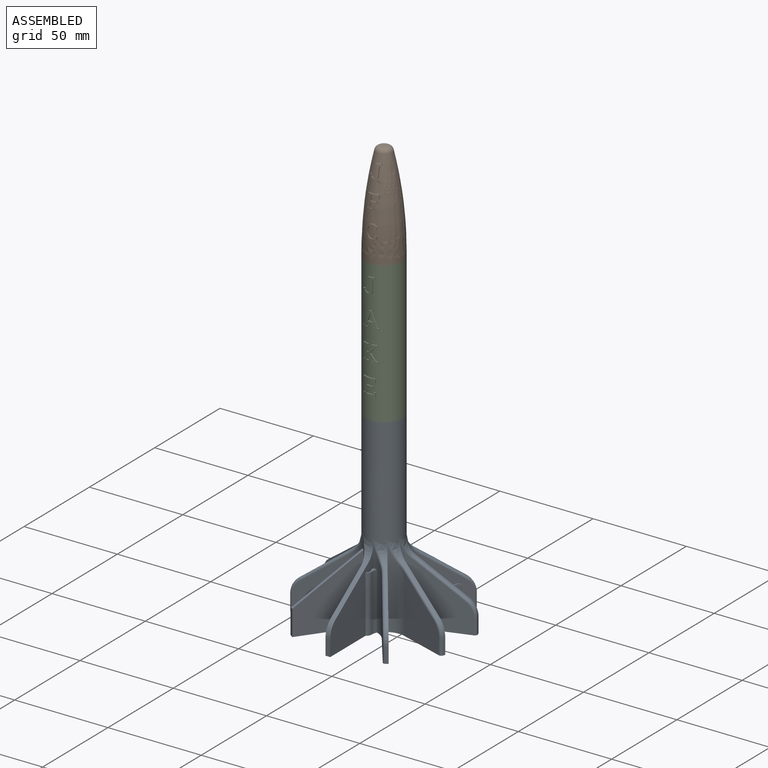
[diagram: assembled view]
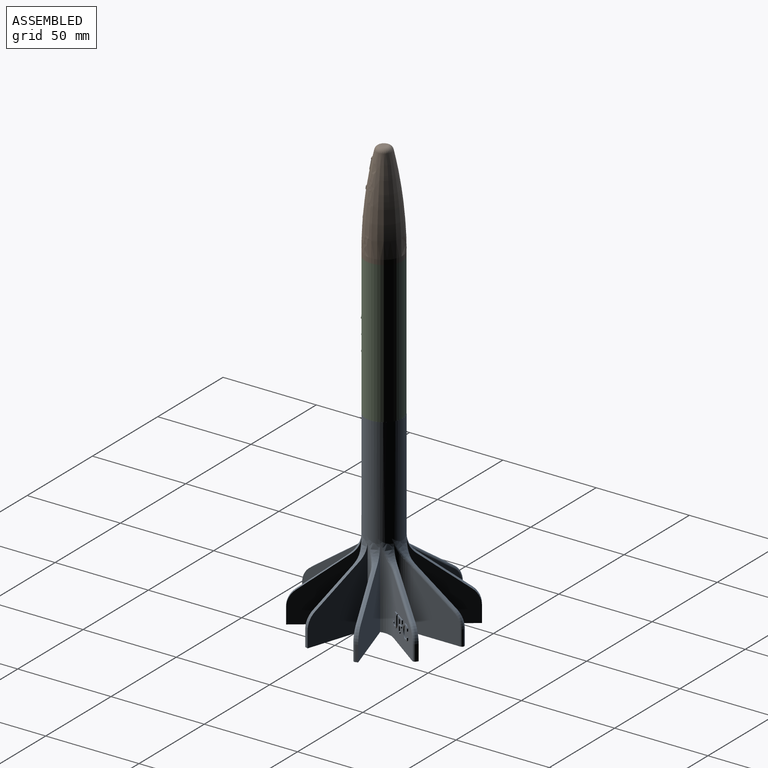
[diagram: assembled view, second angle]
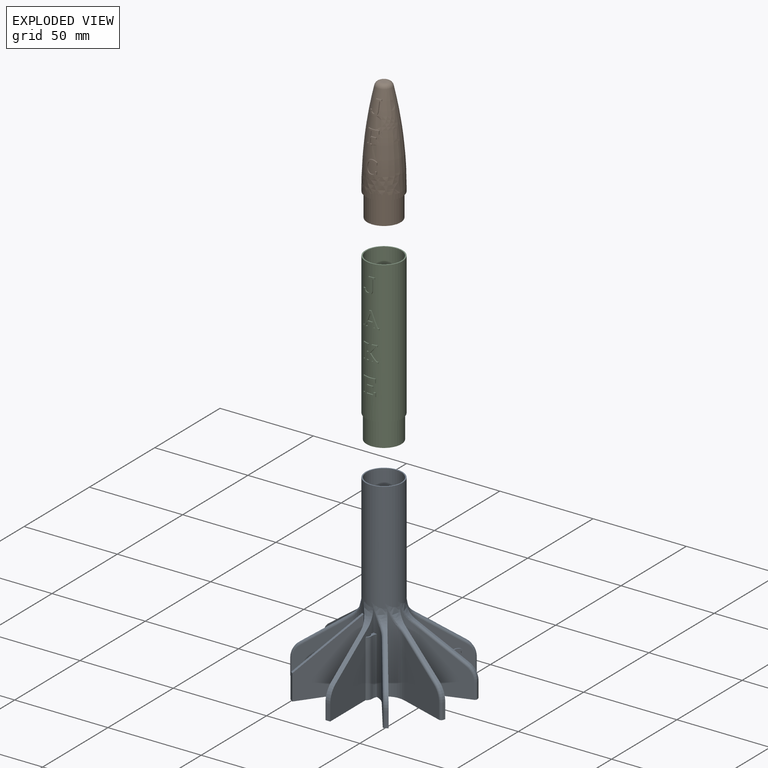
[diagram: exploded view]
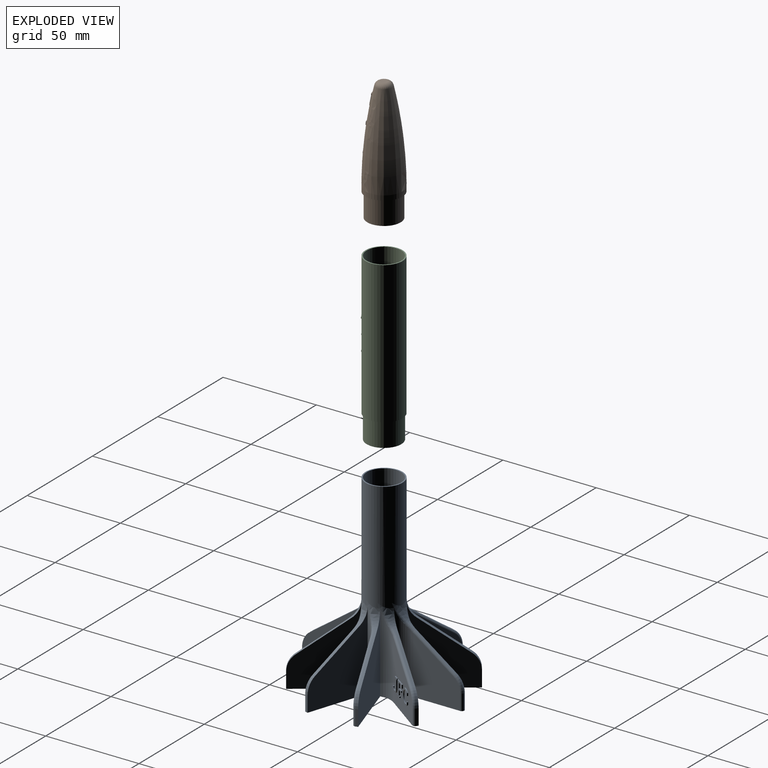
[diagram: exploded view, second angle]
ASSEMBLY  parts=3 mates=2
PART A: 208 faces, bbox 83.6x87x101.7 mm
  f0: cylinder r=9.28mm len=18.57mm, axis (0,0,-1), area 889mm2, adj f21,f142
  f1: cylinder r=10.16mm len=45.05mm, axis (0,0,-1), area 204.7mm2, adj f6,f22,f87,f88,f89,f94,f95,f137
  f2: cylinder r=10.16mm len=42.11mm, axis (0,0,-1), area 247.5mm2, adj f3,f22,f76,f81,f82,f133,f136
  f3: plane 42.43x33.21mm, normal (1,0,0), area 760.8mm2, adj f2,f22,f81,f86,f87,f91,f92,f133
  f4: cylinder r=10.16mm len=42.11mm, axis (0,0,-1), area 314.6mm2, adj f22,f24,f27,f29,f126
  f5: cylinder r=10.16mm len=2.54mm, axis (0,0,-1), area 1.1mm2, adj f6,f118,f130
  f6: cylinder r=9.92mm len=64.35mm, axis (0,0,-1), area 3633.5mm2, adj f1,f5,f7,f9,f11,f12,f14,f16
  f7: cylinder r=10.16mm len=2.54mm, axis (0,0,-1), area 1.1mm2, adj f6,f27,f128
  f8: cylinder r=10.16mm len=42.11mm, axis (0,0,-1), area 314.6mm2, adj f22,f113,f118,f119,f124
  f9: cylinder r=10.16mm len=2.54mm, axis (0,0,-1), area 1.1mm2, adj f6,f103,f115
  f10: cylinder r=10.16mm len=42.11mm, axis (0,0,-1), area 314.6mm2, adj f22,f98,f103,f104,f111
  f11: cylinder r=10.16mm len=2.54mm, axis (0,0,-1), area 1.1mm2, adj f6,f81,f90
  f12: cylinder r=10.16mm len=2.54mm, axis (0,0,-1), area 1.1mm2, adj f6,f68,f78
  f13: cylinder r=10.16mm len=42.11mm, axis (0,0,-1), area 314.6mm2, adj f22,f63,f68,f69,f74
  f14: cylinder r=10.16mm len=2.54mm, axis (0,0,-1), area 1.1mm2, adj f6,f55,f65
  f15: cylinder r=10.16mm len=42.11mm, axis (0,0,-1), area 314.6mm2, adj f22,f50,f55,f56,f61
  f16: cylinder r=10.16mm len=2.54mm, axis (0,0,-1), area 1.1mm2, adj f6,f42,f52
  f17: cylinder r=10.16mm len=42.11mm, axis (0,0,-1), area 314.6mm2, adj f22,f37,f42,f43,f48
  f18: cylinder r=10.16mm len=2.54mm, axis (0,0,-1), area 1.1mm2, adj f6,f28,f39
  f19: cylinder r=10.16mm len=42.11mm, axis (0,0,-1), area 314.6mm2, adj f22,f23,f28,f30,f35
  f20: cylinder r=9.28mm len=73.66mm, axis (0,0,-1), area 4288.1mm2, adj f22,f143,f144,f145
  f21: plane 19.84x19.84mm, normal (0,0,1), area 38.3mm2, adj f0,f6
  f22: plane 86.03x82.61mm, normal (0,0,-1), area 951.9mm2, adj f1,f2,f3,f4,f8,f10,f13,f15
  f23: plane 31.02x25.24mm, normal (1,0,0), area 553.2mm2, adj f19,f22,f31,f32,f33
  f24: plane 31.02x25.24mm, normal (-1,0,0), area 553.2mm2, adj f4,f22,f31,f32,f33
  f25: plane 3.06x2.18mm, normal (0,0.58,0.81), area 1mm2, adj f26,f29,f30
  f26: bspline ~22.86x10.82mm, area 52.8mm2, adj f6,f25,f27,f28
  f27: bspline ~12.86x7.65mm, area 13.2mm2, adj f4,f7,f26,f29,f126,f127
  f28: bspline ~12.86x7.65mm, area 13.2mm2, adj f18,f19,f26,f30,f35,f40
  f29: bspline ~3.46x3.21mm, area 6.8mm2, adj f4,f25,f27,f31
  f30: bspline ~3.46x3.21mm, area 6.8mm2, adj f19,f25,f28,f31
  f31: cylinder r=1.27mm len=22.24mm, axis (0,-0.81,0.58), area 105.3mm2, adj f23,f24,f29,f30,f32
  f32: torus R=8.89mm, axis (1,0,0), area 36.9mm2, adj f23,f24,f31,f33
  f33: cylinder r=1.27mm len=8.48mm, axis (0,0,1), area 33.8mm2, adj f22,f23,f24,f32
  f34: plane 8.48x1.03mm, normal (0.59,0.81,0), area 10.8mm2, adj f22,f35,f41,f46
  f35: plane 42.43x26.9mm, normal (-0.81,0.59,0), area 842.8mm2, adj f19,f22,f28,f34,f36,f40,f41
  f36: plane 20.86x17.48mm, normal (0.34,0.47,0.81), area 38.8mm2, adj f35,f38,f40,f41,f43,f44
  f37: plane 31.02x20.42mm, normal (0.81,-0.59,0), area 506.9mm2, adj f17,f22,f44,f45,f46,f146,f147,f148
  f38: bspline ~10.82x10.02mm, area 29.6mm2, adj f6,f36,f39,f42
  f39: sphere r=10.16mm, area 6.3mm2, adj f18,f38,f40
  f40: bspline ~8.95x4.66mm, area 4.2mm2, adj f28,f35,f36,f39
  f41: cylinder r=10.16mm len=8.28mm, axis (-0.81,0.59,0), area 12.3mm2, adj f34,f35,f36,f45
  f42: bspline ~12.86x9.37mm, area 13.2mm2, adj f16,f17,f38,f43,f48,f53
  f43: bspline ~3.76x3.21mm, area 6.8mm2, adj f17,f36,f42,f44
  f44: cylinder r=1.27mm len=18.74mm, axis (0.48,0.66,-0.58), area 52.6mm2, adj f36,f37,f43,f45
  f45: torus R=8.89mm, axis (0.81,-0.59,0), area 18.4mm2, adj f37,f41,f44,f46
  f46: cylinder r=1.27mm len=8.48mm, axis (0,0,-1), area 16.9mm2, adj f22,f34,f37,f45
  f47: plane 8.48x1.21mm, normal (0.95,0.31,0), area 10.8mm2, adj f22,f48,f54,f59
  f48: plane 42.43x31.6mm, normal (-0.31,0.95,0), area 842.8mm2, adj f17,f22,f42,f47,f49,f53,f54
  f49: plane 23.73x17.48mm, normal (0.55,0.18,0.81), area 38.8mm2, adj f48,f51,f53,f54,f56,f57
  f50: plane 31.02x24mm, normal (0.31,-0.95,0), area 553.2mm2, adj f15,f22,f57,f58,f59
  f51: bspline ~12.41x10.82mm, area 29.6mm2, adj f6,f49,f52,f55
  f52: sphere r=10.16mm, area 4.7mm2, adj f16,f51,f53
  f53: bspline ~8.95x4.63mm, area 4.2mm2, adj f42,f48,f49,f52
  f54: cylinder r=10.16mm len=8.28mm, axis (-0.31,0.95,0), area 12.3mm2, adj f47,f48,f49,f58
  f55: bspline ~12.85x7.62mm, area 13.2mm2, adj f14,f15,f51,f56,f61,f66
  f56: bspline ~3.21x2.88mm, area 6.8mm2, adj f15,f49,f55,f57
  f57: cylinder r=1.27mm len=20.86mm, axis (0.77,0.25,-0.58), area 52.6mm2, adj f49,f50,f56,f58
  f58: torus R=8.89mm, axis (0.31,-0.95,0), area 18.4mm2, adj f50,f54,f57,f59
  f59: cylinder r=1.27mm len=8.48mm, axis (0,0,-1), area 16.9mm2, adj f22,f47,f50,f58
  f60: plane 8.48x1.21mm, normal (0.95,-0.31,0), area 10.8mm2, adj f22,f61,f67,f72
  f61: plane 42.43x31.6mm, normal (0.31,0.95,0), area 842.8mm2, adj f15,f22,f55,f60,f62,f66,f67
  f62: plane 23.88x17.48mm, normal (0.55,-0.18,0.81), area 38.8mm2, adj f61,f64,f66,f67,f69,f70
  f63: plane 31.02x24mm, normal (-0.31,-0.95,0), area 553.2mm2, adj f13,f22,f70,f71,f72
  f64: bspline ~11.3x10.82mm, area 29.6mm2, adj f6,f62,f65,f68
  f65: sphere r=10.16mm, area 4.6mm2, adj f14,f64,f66
  f66: bspline ~8.46x4.51mm, area 4.2mm2, adj f55,f61,f62,f65
  f67: cylinder r=10.16mm len=8.28mm, axis (0.31,0.95,0), area 12.3mm2, adj f60,f61,f62,f71
  f68: bspline ~12.85x8.88mm, area 13.2mm2, adj f12,f13,f64,f69,f74,f79
  f69: bspline ~3.79x3.21mm, area 6.8mm2, adj f13,f62,f68,f70
  f70: cylinder r=1.27mm len=21.54mm, axis (0.77,-0.25,-0.58), area 52.6mm2, adj f62,f63,f69,f71
  f71: torus R=8.89mm, axis (-0.31,-0.95,0), area 18.4mm2, adj f63,f67,f70,f72
  f72: cylinder r=1.27mm len=8.48mm, axis (0,0,-1), area 16.9mm2, adj f22,f60,f63,f71
  f73: plane 8.48x1.03mm, normal (0.59,-0.81,0), area 10.8mm2, adj f22,f74,f80,f85
  f74: plane 42.43x26.9mm, normal (0.81,0.59,0), area 842.8mm2, adj f13,f22,f68,f73,f75,f79,f80
  f75: plane 20.6x17.48mm, normal (0.34,-0.47,0.81), area 38.8mm2, adj f74,f77,f79,f80,f82,f83
  f76: plane 31.02x20.42mm, normal (-0.81,-0.59,0), area 553.2mm2, adj f2,f22,f83,f84,f85
  f77: bspline ~11.71x10.82mm, area 29.6mm2, adj f6,f75,f78,f81
  f78: sphere r=10.16mm, area 4.1mm2, adj f12,f77,f79
  f79: bspline ~8.95x4.75mm, area 4.2mm2, adj f68,f74,f75,f78
  f80: cylinder r=10.16mm len=8.28mm, axis (0.81,0.59,0), area 12.3mm2, adj f73,f74,f75,f84
  f81: bspline ~12.13x8.07mm, area 13.2mm2, adj f2,f3,f11,f77,f82,f91
  f82: bspline ~3.36x3.21mm, area 6.8mm2, adj f2,f75,f81,f83
  f83: cylinder r=1.27mm len=17.76mm, axis (0.48,-0.66,-0.58), area 52.6mm2, adj f75,f76,f82,f84
  f84: torus R=8.89mm, axis (-0.81,-0.59,0), area 18.4mm2, adj f76,f80,f83,f85
  f85: cylinder r=1.27mm len=8.48mm, axis (0,0,-1), area 16.9mm2, adj f22,f73,f76,f84
  f86: plane 8.48x2.54mm, normal (0,-1,0), area 21.5mm2, adj f3,f22,f88,f92
  f87: plane 24.63x17.53mm, normal (0,-0.58,0.81), area 76.8mm2, adj f1,f3,f88,f89,f91,f92
  f88: plane 32.58x26.51mm, normal (-1,0,0), area 609.6mm2, adj f1,f22,f86,f87,f92
  f89: bspline ~11.89x10.82mm, area 36.8mm2, adj f1,f6,f87,f90
  f90: sphere r=10.16mm, area 4.7mm2, adj f11,f89,f91
  f91: bspline ~8.95x4.7mm, area 4.2mm2, adj f3,f81,f87,f90
  f92: cylinder r=10.16mm len=8.28mm, axis (1,0,0), area 24.6mm2, adj f3,f86,f87,f88
  f93: plane 13.72x2.06mm, normal (-0.59,-0.81,0), area 34.4mm2, adj f22,f94,f95,f96,f97
  f94: plane 37.25x26.75mm, normal (0.81,-0.59,0), area 842.8mm2, adj f1,f22,f93,f95
  f95: plane 27.54x23.57mm, normal (-0.34,-0.47,0.81), area 51.6mm2, adj f1,f6,f93,f94,f97
  f96: plane 35.69x26.75mm, normal (-0.81,0.59,0), area 791.2mm2, adj f22,f93,f97,f101
  f97: cylinder r=1.27mm len=28.71mm, axis (-0.48,-0.66,-0.58), area 81mm2, adj f6,f93,f95,f96,f101
  f98: plane 31.02x24mm, normal (-0.31,0.95,0), area 553.2mm2, adj f10,f22,f106,f108,f109
  f99: plane 3.04x2.18mm, normal (-0.55,-0.18,0.81), area 1mm2, adj f102,f104,f107
  f100: plane 31.02x24mm, normal (0.31,-0.95,0), area 553.2mm2, adj f22,f101,f106,f108,f109
  f101: cylinder r=10.16mm len=45.05mm, axis (0,0,-1), area 316.8mm2, adj f6,f22,f96,f97,f100,f105,f107
  f102: bspline ~21.74x10.82mm, area 52.8mm2, adj f6,f99,f103,f105
  f103: bspline ~12.85x7.62mm, area 13.2mm2, adj f9,f10,f102,f104,f111,f116
  f104: bspline ~3.21x2.88mm, area 6.8mm2, adj f10,f99,f103,f106
  f105: bspline ~12.86x8.89mm, area 8.7mm2, adj f101,f102,f107
  f106: cylinder r=1.27mm len=21.65mm, axis (-0.77,-0.25,-0.58), area 105.3mm2, adj f98,f100,f104,f107,f108
  f107: bspline ~3.79x3.21mm, area 6.8mm2, adj f99,f101,f105,f106
  f108: torus R=8.89mm, axis (-0.31,0.95,0), area 36.9mm2, adj f98,f100,f106,f109
  f109: cylinder r=1.27mm len=8.48mm, axis (0,0,-1), area 33.8mm2, adj f22,f98,f100,f108
  f110: plane 8.48x1.21mm, normal (-0.95,0.31,0), area 10.8mm2, adj f22,f111,f117,f122
  f111: plane 42.43x31.6mm, normal (-0.31,-0.95,0), area 842.8mm2, adj f10,f22,f103,f110,f112,f116,f117
  f112: plane 23.88x17.48mm, normal (-0.55,0.18,0.81), area 38.8mm2, adj f111,f114,f116,f117,f119,f120
  f113: plane 31.02x24mm, normal (0.31,0.95,0), area 553.2mm2, adj f8,f22,f120,f121,f122
  f114: bspline ~11.3x10.82mm, area 29.6mm2, adj f6,f112,f115,f118
  f115: sphere r=10.16mm, area 4.6mm2, adj f9,f114,f116
  f116: bspline ~8.95x4.92mm, area 4.2mm2, adj f103,f111,f112,f115
  f117: cylinder r=10.16mm len=8.28mm, axis (-0.31,-0.95,0), area 12.3mm2, adj f110,f111,f112,f121
  f118: bspline ~12.85x8.88mm, area 13.2mm2, adj f5,f8,f114,f119,f124,f131
  f119: bspline ~3.79x3.21mm, area 6.8mm2, adj f8,f112,f118,f120
  f120: cylinder r=1.27mm len=21.54mm, axis (-0.77,0.25,-0.58), area 52.6mm2, adj f112,f113,f119,f121
  f121: torus R=8.89mm, axis (0.31,0.95,0), area 18.4mm2, adj f113,f117,f120,f122
  f122: cylinder r=1.27mm len=8.48mm, axis (0,0,-1), area 16.9mm2, adj f22,f110,f113,f121
  f123: plane 8.48x2.06mm, normal (-0.59,0.81,0), area 21.5mm2, adj f22,f124,f126,f132
  f124: plane 42.43x26.9mm, normal (-0.81,-0.59,0), area 842.8mm2, adj f8,f22,f118,f123,f125,f131,f132
  f125: plane 21.34x17.48mm, normal (-0.34,0.47,0.81), area 76.5mm2, adj f124,f126,f127,f129,f131,f132
  f126: plane 42.4x26.87mm, normal (0.81,0.59,0), area 842.8mm2, adj f4,f22,f27,f123,f125,f127,f132
  f127: bspline ~9.15x4.96mm, area 4.2mm2, adj f27,f125,f126,f128
  f128: sphere r=10.16mm, area 6.3mm2, adj f7,f127,f129
  f129: bspline ~8.28x3.85mm, area 6.4mm2, adj f6,f125,f128,f130
  f130: sphere r=10.16mm, area 4.1mm2, adj f5,f129,f131
  f131: bspline ~8.95x4.73mm, area 4.2mm2, adj f118,f124,f125,f130
  f132: cylinder r=10.16mm len=8.28mm, axis (-0.81,-0.59,0), area 24.6mm2, adj f123,f124,f125,f126
  f133: plane 6.02x2.16mm, normal (0,0,1), area 6.6mm2, adj f2,f3,f134,f135,f136
  f134: cylinder r=2.1mm len=30.48mm, axis (0,0,-1), area 117.5mm2, adj f3,f22,f133
  f135: cylinder r=2.74mm len=30.48mm, axis (0,0,-1), area 91.1mm2, adj f3,f22,f133,f136
  f136: cylinder r=7.73mm len=30.48mm, axis (0,0,-1), area 99.9mm2, adj f2,f22,f133,f135
  f137: cylinder r=7.73mm len=30.48mm, axis (0,0,-1), area 109mm2, adj f1,f22,f138,f140
  f138: cylinder r=2.74mm len=30.48mm, axis (0,0,-1), area 90.6mm2, adj f1,f22,f137,f140
  f139: cylinder r=2.1mm len=30.48mm, axis (0,0,-1), area 77.6mm2, adj f1,f22,f140
  f140: plane 5.88x2.27mm, normal (0,0,1), area 3.2mm2, adj f1,f137,f138,f139
  f141: cylinder r=7.62mm len=15.24mm, axis (0,0,-1), area 608mm2, adj f142,f143
  f142: plane 18.57x18.57mm, normal (0,0,1), area 88.4mm2, adj f0,f141
  f143: plane 18.57x18.57mm, normal (0,0,-1), area 88.4mm2, adj f20,f141
  f144: cylinder r=2.54mm len=3.75mm, axis (0,0,-1), area 9.6mm2, adj f20,f22,f145
  f145: plane 3.75x1.02mm, normal (0,0,1), area 2.6mm2, adj f20,f144
  f146: plane 0.68x0.41mm, normal (0.59,0.81,0), area 0.3mm2, adj f37,f147,f162,f163
  f147: plane 2.57x2.06mm, normal (0,0,1), area 1.4mm2, adj f37,f146,f148,f163
  f148: plane 0.68x0.41mm, normal (-0.59,-0.81,0), area 0.3mm2, adj f37,f147,f149,f163
  f149: plane 1.01x0.93mm, normal (-0.1,-0.14,-0.99), area 0.5mm2, adj f37,f148,f150,f163
  f150: plane 4.82x0.41mm, normal (-0.59,-0.81,0), area 2.5mm2, adj f37,f149,f151,f163
  f151: extruded ~1.05x0.63mm, area 0.6mm2, adj f37,f150,f152,f163
  f152: extruded ~1.07x0.97mm, area 0.5mm2, adj f37,f151,f153,f163
  f153: extruded ~1.14x1.02mm, area 0.6mm2, adj f37,f152,f154,f163
  f154: extruded ~1.08x0.63mm, area 0.6mm2, adj f37,f153,f155,f163
  f155: plane 1.12x1.01mm, normal (0,0,1), area 0.5mm2, adj f37,f154,f156,f163
  f156: plane 0.42x0.31mm, normal (-0.56,-0.77,0.3), area 0mm2, adj f37,f155,f157,f163
  f157: extruded ~1.66x0.82mm, area 0.9mm2, adj f37,f156,f158,f163
  f158: extruded ~1.75x1.47mm, area 1mm2, adj f37,f157,f159,f163
  f159: extruded ~1.69x1.42mm, area 1mm2, adj f37,f158,f160,f163
  f160: extruded ~1.66x0.84mm, area 0.9mm2, adj f37,f159,f161,f163
  f161: plane 4.82x0.41mm, normal (0.59,0.81,0), area 2.5mm2, adj f37,f160,f162,f163
  f162: plane 1.01x0.93mm, normal (0.1,0.14,-0.99), area 0.5mm2, adj f37,f146,f161,f163
  f163: plane 7.93x4.63mm, normal (0.81,-0.59,0), area 13mm2, adj f146,f147,f148,f149,f150,f151,f152,f153
  f164: plane 1.01x0.93mm, normal (-0.1,-0.14,0.99), area 0.5mm2, adj f37,f165,f181,f182
  f165: plane 0.68x0.41mm, normal (-0.59,-0.81,0), area 0.3mm2, adj f37,f164,f166,f182
  f166: plane 2.57x2.06mm, normal (0,0,-1), area 1.4mm2, adj f37,f165,f167,f182
  f167: plane 0.68x0.41mm, normal (0.59,0.81,0), area 0.3mm2, adj f37,f166,f168,f182
  f168: plane 1.01x0.93mm, normal (0.1,0.14,0.99), area 0.5mm2, adj f37,f167,f169,f182
  f169: plane 2.63x0.41mm, normal (0.59,0.81,0), area 1.3mm2, adj f37,f168,f170,f182
  f170: plane 2.74x2.19mm, normal (0,0,-1), area 1.5mm2, adj f37,f169,f171,f182
  f171: plane 0.83x0.41mm, normal (0.59,0.81,0), area 0.4mm2, adj f37,f170,f172,f182
  f172: plane 2.74x2.19mm, normal (0,0,1), area 1.5mm2, adj f37,f171,f173,f182
  f173: plane 2.7x0.41mm, normal (0.59,0.81,0), area 1.4mm2, adj f37,f172,f174,f182
  f174: plane 2.82x2.25mm, normal (0,0,-1), area 1.6mm2, adj f37,f173,f175,f182
  f175: plane 1.05x0.46mm, normal (-0.59,-0.81,-0.08), area 0.5mm2, adj f37,f174,f176,f182
  f176: plane 1.03x0.94mm, normal (0,0,-1), area 0.5mm2, adj f37,f175,f177,f182
  f177: plane 1.88x0.41mm, normal (0.59,0.81,0), area 1mm2, adj f37,f176,f178,f182
  f178: plane 5.19x3.96mm, normal (0,0,1), area 3.1mm2, adj f37,f177,f179,f182
  f179: plane 0.68x0.41mm, normal (-0.59,-0.81,0), area 0.3mm2, adj f37,f178,f180,f182
  f180: plane 1.01x0.93mm, normal (-0.1,-0.14,-0.99), area 0.5mm2, adj f37,f179,f181,f182
  f181: plane 6.16x0.41mm, normal (-0.59,-0.81,0), area 3.1mm2, adj f37,f164,f180,f182
  f182: plane 7.82x4.89mm, normal (0.81,-0.59,0), area 17.2mm2, adj f164,f165,f166,f167,f168,f169,f170,f171
  f183: plane 0.9x0.85mm, normal (0,0,-1), area 0.4mm2, adj f37,f184,f206,f207
  f184: plane 1.39x0.41mm, normal (0.59,0.81,0), area 0.7mm2, adj f37,f183,f185,f207
  f185: extruded ~1.12x1.01mm, area 0.7mm2, adj f37,f184,f186,f207
  f186: extruded ~1.57x1.33mm, area 0.8mm2, adj f37,f185,f187,f207
  f187: extruded ~2.34x1.89mm, area 1.4mm2, adj f37,f186,f188,f207
  f188: extruded ~2.84x1.08mm, area 1.6mm2, adj f37,f187,f189,f207
  f189: plane 0.41x0.3mm, normal (-0.59,-0.81,0), area 0.1mm2, adj f37,f188,f190,f207
  f190: extruded ~2.84x1.09mm, area 1.6mm2, adj f37,f189,f191,f207
  f191: extruded ~2.32x1.88mm, area 1.4mm2, adj f37,f190,f192,f207
  f192: extruded ~1.57x1.33mm, area 0.8mm2, adj f37,f191,f193,f207
  f193: extruded ~1.12x1.01mm, area 0.7mm2, adj f37,f192,f194,f207
  f194: plane 1.39x0.41mm, normal (0.59,0.81,0), area 0.7mm2, adj f37,f193,f195,f207
  f195: plane 0.9x0.85mm, normal (0,0,1), area 0.4mm2, adj f37,f194,f196,f207
  f196: plane 1.11x0.53mm, normal (-0.58,-0.8,0.18), area 0.6mm2, adj f37,f195,f197,f207
  f197: extruded ~0.84x0.81mm, area 0.4mm2, adj f37,f196,f198,f207
  f198: extruded ~1.08x0.98mm, area 0.5mm2, adj f37,f197,f199,f207
  f199: extruded ~1.74x1.46mm, area 1.1mm2, adj f37,f198,f200,f207
  f200: extruded ~2.25x0.82mm, area 1.2mm2, adj f37,f199,f201,f207
  f201: plane 0.41x0.3mm, normal (0.59,0.81,0), area 0.1mm2, adj f37,f200,f202,f207
  f202: extruded ~2.24x0.83mm, area 1.2mm2, adj f37,f201,f203,f207
  f203: extruded ~1.81x1.51mm, area 1.1mm2, adj f37,f202,f204,f207
  f204: extruded ~1.03x0.94mm, area 0.5mm2, adj f37,f203,f205,f207
  f205: extruded ~0.81x0.78mm, area 0.4mm2, adj f37,f204,f206,f207
  f206: plane 1.11x0.53mm, normal (-0.58,-0.8,-0.18), area 0.6mm2, adj f37,f183,f205,f207
  f207: plane 8.05x4.91mm, normal (0.81,-0.59,0), area 16.1mm2, adj f183,f184,f185,f186,f187,f188,f189,f190
PART B: 80 faces, bbox 19.9x20.2x66.1 mm
  f0: plane 17.3x17.3mm, normal (0,0,1), area 16.3mm2, adj f2,f14
  f1: cylinder r=8.98mm len=17.96mm, axis (0,0,-1), area 716.5mm2, adj f3,f12
  f2: cylinder r=8.34mm len=16.69mm, axis (0,0,-1), area 721.1mm2, adj f0,f3,f6,f7,f8,f9,f10
  f3: plane 17.96x17.96mm, normal (0,0,-1), area 79.4mm2, adj f1,f2,f4,f5,f7,f8,f9,f10
  f4: plane 13.2x6.35mm, normal (-1,0,0), area 83.8mm2, adj f3,f6,f7,f10
  f5: plane 13.2x6.35mm, normal (1,0,0), area 83.8mm2, adj f3,f6,f8,f9
  f6: plane 16.69x5.99mm, normal (0,0,1), area 44.9mm2, adj f2,f4,f5,f7,f8,f9,f10
  f7: cylinder r=1.27mm len=6.35mm, axis (0,0,-1), area 15.6mm2, adj f2,f3,f4,f6
  f8: cylinder r=1.27mm len=6.35mm, axis (0,0,-1), area 15.6mm2, adj f2,f3,f5,f6
  f9: cylinder r=1.27mm len=6.35mm, axis (0,0,-1), area 15.6mm2, adj f2,f3,f5,f6
  f10: cylinder r=1.27mm len=6.35mm, axis (0,0,-1), area 15.6mm2, adj f2,f3,f4,f6
  f11: cylinder r=9.92mm len=19.84mm, axis (0,0,1), area 158.3mm2, adj f12,f15
  f12: plane 19.84x19.84mm, normal (0,0,-1), area 55.8mm2, adj f1,f11
  f13: plane 5.62x5.62mm, normal (0,0,-1), area 24.8mm2, adj f14
  f14: revolved ~49.53x17.3mm, area 2104mm2, adj f0,f13
  f15: revolved ~48.84x19.84mm, area 2443.4mm2, adj f11,f17,f19,f20,f21,f22,f23,f24
  f16: plane 3.61x3.61mm, normal (0,0,1), area 10.2mm2, adj f17
  f17: torus R=1.81mm, axis (0,0,-1), area 69.9mm2, adj f15,f16
  f18: revolved ~7.63x6.33mm, area 12.6mm2, adj f19,f20,f21,f22,f23,f24,f25,f26
  f19: extruded ~1.04x0.82mm, area 0.6mm2, adj f15,f18,f20,f34
  f20: extruded ~1x0.77mm, area 0.6mm2, adj f15,f18,f19,f21
  f21: extruded ~0.92x0.53mm, area 0.5mm2, adj f15,f18,f20,f22
  f22: extruded ~1.01x0.71mm, area 0.6mm2, adj f15,f18,f21,f23
  f23: plane 4.65x1.43mm, normal (-1,0,0), area 2.4mm2, adj f15,f18,f22,f24
  f24: plane 0.85x0.53mm, normal (-0.17,0,-0.99), area 0.4mm2, adj f15,f18,f23,f25
  f25: plane 0.66x0.65mm, normal (-1,0,0), area 0.3mm2, adj f15,f18,f24,f35
  f26: plane 0.87x0.85mm, normal (0.17,0,-0.99), area 0.4mm2, adj f15,f18,f27,f33
  f27: plane 4.67x1.48mm, normal (1,0,0), area 2.4mm2, adj f15,f18,f26,f28
  f28: extruded ~1.6x0.92mm, area 0.9mm2, adj f15,f18,f27,f29
  f29: extruded ~1.66x0.63mm, area 0.9mm2, adj f15,f18,f28,f30
  f30: extruded ~1.73x1.04mm, area 0.9mm2, adj f15,f18,f29,f31
  f31: extruded ~1.6x1.12mm, area 0.9mm2, adj f15,f18,f30,f32
  f32: plane 0.51x0.03mm, normal (-0.95,0,0.3), area 0mm2, adj f15,f18,f31,f34
  f33: plane 0.66x0.66mm, normal (1,0,0), area 0.3mm2, adj f15,f18,f26,f35
  f34: plane 0.98x0.95mm, normal (0,0,1), area 0.5mm2, adj f15,f18,f19,f32
  f35: plane 2.7x1.08mm, normal (0,0,1), area 1.4mm2, adj f15,f18,f25,f33
  f36: revolved ~7.52x6.52mm, area 16.4mm2, adj f37,f38,f39,f40,f41,f42,f43,f44
  f37: plane 2.54x0.81mm, normal (1,0,0), area 1.3mm2, adj f15,f36,f38,f53
  f38: plane 0.84x0.6mm, normal (0.17,0,0.99), area 0.4mm2, adj f15,f36,f37,f39
  f39: plane 0.65x0.58mm, normal (1,0,0), area 0.3mm2, adj f15,f36,f38,f54
  f40: plane 0.8x0.61mm, normal (1,0,0), area 0.4mm2, adj f15,f36,f52,f53
  f41: plane 2.6x0.86mm, normal (1,0,0), area 1.3mm2, adj f15,f36,f51,f52
  f42: plane 1.01x0.63mm, normal (-1,0,-0.08), area 0.5mm2, adj f15,f36,f50,f51
  f43: plane 1.81x0.78mm, normal (1,0,0), area 0.9mm2, adj f15,f36,f49,f50
  f44: plane 5.96x1.31mm, normal (-1,0,0), area 3mm2, adj f15,f36,f45,f48
  f45: plane 0.84x0.83mm, normal (-0.17,0,-0.99), area 0.4mm2, adj f15,f36,f44,f46
  f46: plane 0.66x0.61mm, normal (-1,0,0), area 0.3mm2, adj f15,f36,f45,f49
  f47: plane 0.65x0.58mm, normal (-1,0,0), area 0.3mm2, adj f15,f36,f48,f54
  f48: plane 0.84x0.76mm, normal (-0.17,0,0.99), area 0.4mm2, adj f15,f36,f44,f47
  f49: plane 5.81x1.14mm, normal (0,0,1), area 3mm2, adj f15,f36,f43,f46
  f50: plane 0.87x0.77mm, normal (0,0,-1), area 0.4mm2, adj f15,f36,f42,f43
  f51: plane 3x0.72mm, normal (0,0,-1), area 1.5mm2, adj f15,f36,f41,f42
  f52: plane 2.91x0.69mm, normal (0,0,1), area 1.5mm2, adj f15,f36,f40,f41
  f53: plane 2.91x0.69mm, normal (0,0,-1), area 1.5mm2, adj f15,f36,f37,f40
  f54: plane 2.7x1.06mm, normal (0,0,-1), area 1.4mm2, adj f15,f36,f39,f47
  f55: revolved ~7.74x6.01mm, area 15.3mm2, adj f56,f57,f58,f59,f60,f61,f62,f63
  f56: plane 1.34x0.58mm, normal (1,0,0), area 0.7mm2, adj f15,f55,f57,f78
  f57: extruded ~0.98x0.78mm, area 0.6mm2, adj f15,f55,f56,f58
  f58: extruded ~1.51x0.68mm, area 0.8mm2, adj f15,f55,f57,f59
  f59: extruded ~2.41x1.09mm, area 1.4mm2, adj f15,f55,f58,f60
  f60: extruded ~2.73x0.94mm, area 1.5mm2, adj f15,f55,f59,f61
  f61: plane 0.51x0.11mm, normal (-1,0,0), area 0.1mm2, adj f15,f55,f60,f62
  f62: extruded ~2.74x0.93mm, area 1.5mm2, adj f15,f55,f61,f63
  f63: extruded ~2.42x1.08mm, area 1.4mm2, adj f15,f55,f62,f64
  f64: extruded ~1.51x0.65mm, area 0.8mm2, adj f15,f55,f63,f65
  f65: extruded ~0.98x0.75mm, area 0.6mm2, adj f15,f55,f64,f66
  f66: plane 1.34x0.61mm, normal (1,0,0), area 0.7mm2, adj f15,f55,f65,f79
  f67: plane 1.07x0.54mm, normal (-0.98,0,-0.18), area 0.5mm2, adj f15,f55,f68,f79
  f68: extruded ~0.61x0.58mm, area 0.4mm2, adj f15,f55,f67,f69
  f69: extruded ~0.86x0.57mm, area 0.4mm2, adj f15,f55,f68,f70
  f70: extruded ~1.8x0.85mm, area 1.1mm2, adj f15,f55,f69,f71
  f71: extruded ~2.16x0.63mm, area 1.2mm2, adj f15,f55,f70,f72
  f72: plane 0.52x0.12mm, normal (1,0,0), area 0.1mm2, adj f15,f55,f71,f73
  f73: extruded ~2.16x0.74mm, area 1.2mm2, adj f15,f55,f72,f74
  f74: extruded ~1.71x0.86mm, area 1mm2, adj f15,f55,f73,f75
  f75: extruded ~0.93x0.59mm, area 0.5mm2, adj f15,f55,f74,f76
  f76: extruded ~0.65x0.63mm, area 0.4mm2, adj f15,f55,f75,f77
  f77: plane 1.07x0.6mm, normal (-0.98,0,0.18), area 0.5mm2, adj f15,f55,f76,f78
  f78: plane 0.72x0.69mm, normal (0,0,1), area 0.4mm2, adj f15,f55,f56,f77
  f79: plane 0.72x0.7mm, normal (0,0,-1), area 0.4mm2, adj f15,f55,f66,f67
PART C: 105 faces, bbox 20x20.4x88.9 mm
  f0: cylinder r=9.28mm len=67.09mm, axis (0,0,-1), area 3688.2mm2, adj f2,f7,f8,f12,f13
  f1: cylinder r=9.92mm len=76.2mm, axis (0,0,-1), area 4645mm2, adj f2,f3,f15,f16,f17,f18,f19,f20
  f2: plane 19.84x19.84mm, normal (0,0,1), area 38.3mm2, adj f0,f1
  f3: plane 19.84x19.84mm, normal (0,0,-1), area 38.3mm2, adj f1,f4
  f4: cylinder r=9.28mm len=18.57mm, axis (0,0,1), area 740.8mm2, adj f3,f6
  f5: cylinder r=8.47mm len=19.05mm, axis (0,0,1), area 1013.9mm2, adj f6,f7
  f6: plane 18.57x18.57mm, normal (0,0,-1), area 45.3mm2, adj f4,f5
  f7: torus R=4.2mm, axis (0,0,-1), area 164.9mm2, adj f0,f5
  f8: cylinder r=4.19mm len=26.67mm, axis (0,0,1), area 227.1mm2, adj f0,f10,f11,f12,f13
  f9: cylinder r=1.65mm len=23.94mm, axis (0,0,1), area 216.3mm2, adj f12,f13
  f10: plane 2.66x0.38mm, normal (0,0,-1), area 0.7mm2, adj f8,f13
  f11: plane 2.66x0.38mm, normal (0,0,1), area 0.7mm2, adj f8,f12
  f12: torus R=5.47mm, axis (0,0,1), area 31mm2, adj f0,f8,f9,f11
  f13: torus R=5.47mm, axis (0,0,1), area 31mm2, adj f0,f8,f9,f10
  f14: cylinder r=9.92mm len=8.91mm, axis (0,0,-1), area 16.7mm2, adj f15,f16,f17,f18,f19,f20,f21,f22
  f15: plane 0.77x0.51mm, normal (-1,0,0), area 0.4mm2, adj f1,f14,f30,f31
  f16: extruded ~1.21x0.64mm, area 0.7mm2, adj f1,f14,f17,f29
  f17: extruded ~1.17x0.78mm, area 0.6mm2, adj f1,f14,f16,f18
  f18: extruded ~1.07x0.63mm, area 0.6mm2, adj f1,f14,f17,f19
  f19: extruded ~1.18x0.52mm, area 0.7mm2, adj f1,f14,f18,f20
  f20: plane 5.42x0.51mm, normal (-1,0,0), area 2.8mm2, adj f1,f14,f19,f30
  f21: plane 5.42x0.51mm, normal (1,0,0), area 2.8mm2, adj f1,f14,f22,f27
  f22: extruded ~1.87x0.74mm, area 1.1mm2, adj f1,f14,f21,f23
  f23: extruded ~1.93x0.69mm, area 1.1mm2, adj f1,f14,f22,f24
  f24: extruded ~2.02x1.07mm, area 1.1mm2, adj f1,f14,f23,f25
  f25: extruded ~1.87x0.83mm, area 1.1mm2, adj f1,f14,f24,f28
  f26: plane 0.77x0.51mm, normal (1,0,0), area 0.4mm2, adj f1,f14,f27,f31
  f27: plane 0.98x0.66mm, normal (0.17,0,-0.99), area 0.5mm2, adj f1,f14,f21,f26
  f28: plane 0.51x0.04mm, normal (-0.95,0,0.3), area 0mm2, adj f1,f14,f25,f29
  f29: plane 1.14x0.98mm, normal (0,0,1), area 0.6mm2, adj f1,f14,f16,f28
  f30: plane 0.98x0.57mm, normal (-0.17,0,-0.99), area 0.5mm2, adj f1,f14,f15,f20
  f31: plane 3.15x0.72mm, normal (0,0,1), area 1.6mm2, adj f1,f14,f15,f26
  f32: plane 3.77x1.37mm, normal (-0.94,0,-0.34), area 2mm2, adj f33,f35,f36,f53
  f33: plane 0.51x0.04mm, normal (0,0,-1), area 0mm2, adj f32,f34,f36,f53
  f34: plane 3.78x1.4mm, normal (0.94,0,-0.35), area 2mm2, adj f33,f35,f36,f53
  f35: plane 2.79x0.64mm, normal (0,0,1), area 1.4mm2, adj f32,f34,f36,f53
  f36: cylinder r=9.92mm len=8.78mm, axis (0,0,-1), area 24.8mm2, adj f32,f33,f34,f35,f37,f38,f39,f40
  f37: plane 0.76x0.51mm, normal (-1,0,0), area 0.4mm2, adj f1,f36,f51,f52
  f38: plane 0.76x0.51mm, normal (1,0,0), area 0.4mm2, adj f1,f36,f50,f51
  f39: plane 0.76x0.51mm, normal (-1,0,0), area 0.4mm2, adj f1,f36,f45,f46
  f40: plane 0.76x0.51mm, normal (1,0,0), area 0.4mm2, adj f1,f36,f44,f45
  f41: plane 7.93x3.07mm, normal (-0.93,0,0.36), area 4.3mm2, adj f1,f36,f42,f52
  f42: plane 1.02x0.53mm, normal (0,0,1), area 0.5mm2, adj f1,f36,f41,f43
  f43: plane 7.93x3.02mm, normal (0.93,0,0.36), area 4.3mm2, adj f1,f36,f42,f44
  f44: plane 0.76x0.64mm, normal (0.14,0,0.99), area 0.3mm2, adj f1,f36,f40,f43
  f45: plane 2.52x1.23mm, normal (0,0,-1), area 1.3mm2, adj f1,f36,f39,f40
  f46: plane 0.66x0.63mm, normal (-0.17,0,0.99), area 0.3mm2, adj f1,f36,f39,f47
  f47: plane 1.62x0.62mm, normal (-0.94,0,-0.34), area 0.9mm2, adj f1,f36,f46,f48
  f48: plane 3.52x0.71mm, normal (0,0,-1), area 1.8mm2, adj f1,f36,f47,f49
  f49: plane 1.62x0.65mm, normal (0.94,0,-0.35), area 0.9mm2, adj f1,f36,f48,f50
  f50: plane 0.66x0.66mm, normal (0.17,0,0.99), area 0.3mm2, adj f1,f36,f38,f49
  f51: plane 2.51x1.36mm, normal (0,0,-1), area 1.3mm2, adj f1,f36,f37,f38
  f52: plane 0.8x0.65mm, normal (-0.14,0,0.99), area 0.3mm2, adj f1,f36,f37,f41
  f53: cylinder r=9.92mm len=3.77mm, axis (0,0,-1), area 5.3mm2, adj f32,f33,f34,f35
  f54: cylinder r=9.92mm len=8.78mm, axis (0,0,-1), area 30mm2, adj f55,f56,f57,f58,f59,f60,f61,f62
  f55: plane 0.76x0.51mm, normal (-1,0,0), area 0.4mm2, adj f1,f54,f82,f83
  f56: plane 0.76x0.51mm, normal (1,0,0), area 0.4mm2, adj f1,f54,f81,f82
  f57: plane 3.03x0.51mm, normal (1,0,0), area 1.5mm2, adj f1,f54,f80,f81
  f58: plane 0.76x0.51mm, normal (-1,0,0), area 0.4mm2, adj f1,f54,f77,f78
  f59: plane 0.76x0.51mm, normal (1,0,0), area 0.4mm2, adj f1,f54,f76,f77
  f60: plane 0.77x0.51mm, normal (1,0,0), area 0.4mm2, adj f1,f54,f72,f73
  f61: plane 0.77x0.51mm, normal (-1,0,0), area 0.4mm2, adj f1,f54,f71,f72
  f62: plane 2.95x0.51mm, normal (1,0,0), area 1.5mm2, adj f1,f54,f68,f69
  f63: plane 0.77x0.51mm, normal (1,0,0), area 0.4mm2, adj f1,f54,f67,f68
  f64: plane 0.77x0.51mm, normal (-1,0,0), area 0.4mm2, adj f1,f54,f66,f67
  f65: plane 6.92x0.51mm, normal (-1,0,0), area 3.5mm2, adj f1,f54,f66,f83
  f66: plane 0.98x0.92mm, normal (-0.17,0,-0.99), area 0.5mm2, adj f1,f54,f64,f65
  f67: plane 3.15x1.43mm, normal (0,0,1), area 1.6mm2, adj f1,f54,f63,f64
  f68: plane 0.98x0.68mm, normal (0.17,0,-0.99), area 0.5mm2, adj f1,f54,f62,f63
  f69: plane 0.91x0.67mm, normal (0,0,1), area 0.5mm2, adj f1,f54,f62,f70
  f70: plane 3.03x2.46mm, normal (-0.78,0,0.63), area 2mm2, adj f1,f54,f69,f71
  f71: plane 0.66x0.57mm, normal (-0.13,0,-0.99), area 0.3mm2, adj f1,f54,f61,f70
  f72: plane 2.79x1.07mm, normal (0,0,1), area 1.4mm2, adj f1,f54,f60,f61
  f73: plane 0.83x0.76mm, normal (0.18,0,-0.98), area 0.4mm2, adj f1,f54,f60,f74
  f74: plane 3.36x2.71mm, normal (0.78,0,-0.63), area 2.2mm2, adj f1,f54,f73,f75
  f75: plane 3.66x2.97mm, normal (0.78,0,0.63), area 2.4mm2, adj f1,f54,f74,f76
  f76: plane 0.83x0.79mm, normal (0.18,0,0.98), area 0.4mm2, adj f1,f54,f59,f75
  f77: plane 2.88x1.16mm, normal (0,0,-1), area 1.5mm2, adj f1,f54,f58,f59
  f78: plane 0.67x0.58mm, normal (-0.13,0,0.99), area 0.3mm2, adj f1,f54,f58,f79
  f79: plane 3.12x2.51mm, normal (-0.78,0,-0.63), area 2mm2, adj f1,f54,f78,f80
  f80: plane 1.02x0.68mm, normal (0,0,-1), area 0.5mm2, adj f1,f54,f57,f79
  f81: plane 0.98x0.68mm, normal (0.17,0,0.99), area 0.5mm2, adj f1,f54,f56,f57
  f82: plane 3.15x1.43mm, normal (0,0,-1), area 1.6mm2, adj f1,f54,f55,f56
  f83: plane 0.98x0.92mm, normal (-0.17,0,0.99), area 0.5mm2, adj f1,f54,f55,f65
  f84: cylinder r=9.92mm len=8.78mm, axis (0,0,-1), area 27mm2, adj f85,f86,f87,f88,f89,f90,f91,f92
  f85: plane 2.11x0.51mm, normal (1,0,0), area 1.1mm2, adj f1,f84,f103,f104
  f86: plane 3.14x0.51mm, normal (1,0,0), area 1.6mm2, adj f1,f84,f100,f101
  f87: plane 0.94x0.51mm, normal (1,0,0), area 0.5mm2, adj f1,f84,f99,f100
  f88: plane 2.84x0.51mm, normal (1,0,0), area 1.4mm2, adj f1,f84,f98,f99
  f89: plane 2.11x0.51mm, normal (1,0,0), area 1.1mm2, adj f1,f84,f95,f96
  f90: plane 0.77x0.51mm, normal (-1,0,0), area 0.4mm2, adj f1,f84,f94,f95
  f91: plane 6.92x0.51mm, normal (-1,0,0), area 3.5mm2, adj f1,f84,f93,f94
  f92: plane 0.76x0.51mm, normal (-1,0,0), area 0.4mm2, adj f1,f84,f93,f104
  f93: plane 0.98x0.92mm, normal (-0.17,0,0.99), area 0.5mm2, adj f1,f84,f91,f92
  f94: plane 0.98x0.92mm, normal (-0.17,0,-0.99), area 0.5mm2, adj f1,f84,f90,f91
  f95: plane 6.74x1.5mm, normal (0,0,1), area 3.4mm2, adj f1,f84,f89,f90
  f96: plane 1.02x0.71mm, normal (0,0,-1), area 0.5mm2, adj f1,f84,f89,f97
  f97: plane 1.18x0.52mm, normal (-1,0,-0.08), area 0.6mm2, adj f1,f84,f96,f98
  f98: plane 3.46x0.74mm, normal (0,0,-1), area 1.8mm2, adj f1,f84,f88,f97
  f99: plane 3.36x0.74mm, normal (0,0,1), area 1.7mm2, adj f1,f84,f87,f88
  f100: plane 3.36x0.74mm, normal (0,0,-1), area 1.7mm2, adj f1,f84,f86,f87
  f101: plane 3.53x0.74mm, normal (0,0,1), area 1.8mm2, adj f1,f84,f86,f102
  f102: plane 1.18x0.52mm, normal (-1,0,0.08), area 0.6mm2, adj f1,f84,f101,f103
  f103: plane 1.01x0.71mm, normal (0,0,1), area 0.5mm2, adj f1,f84,f85,f102
  f104: plane 6.81x1.5mm, normal (0,0,-1), area 3.5mm2, adj f1,f84,f85,f92
PLACE A t=(79.89,-2.71,-133.6)mm
PLACE B t=(79.89,-2.71,31.5)mm
PLACE C t=(79.89,-2.71,-32)mm
MATE fastened C.f1 <-> A.f0  axis (0,0,-1) through (79.89,-2.71,-32)mm
MATE fastened B.f11 <-> C.f1  axis (0,0,-1) through (79.89,-2.71,44.2)mm
